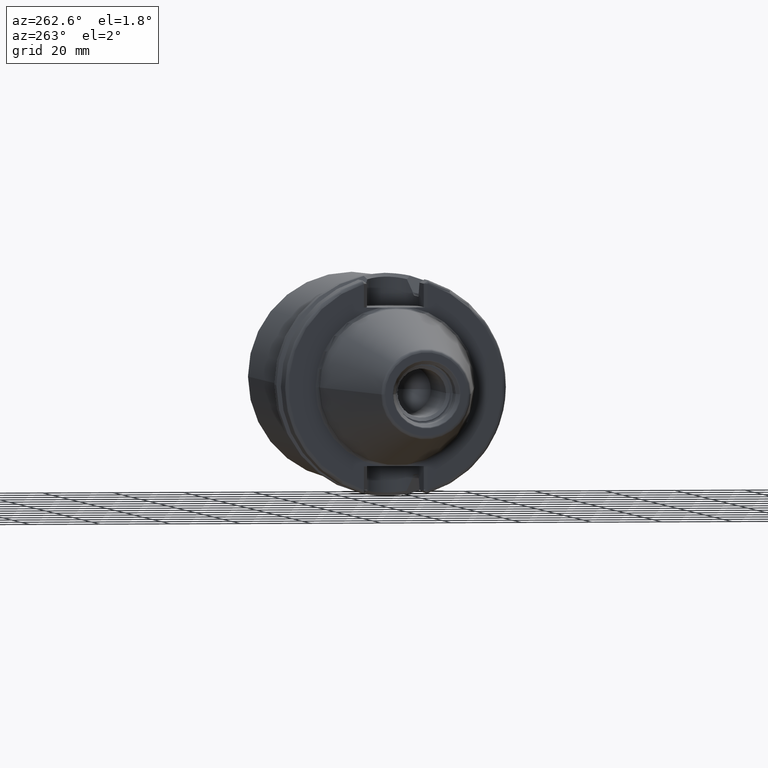
[diagram: clean part render]
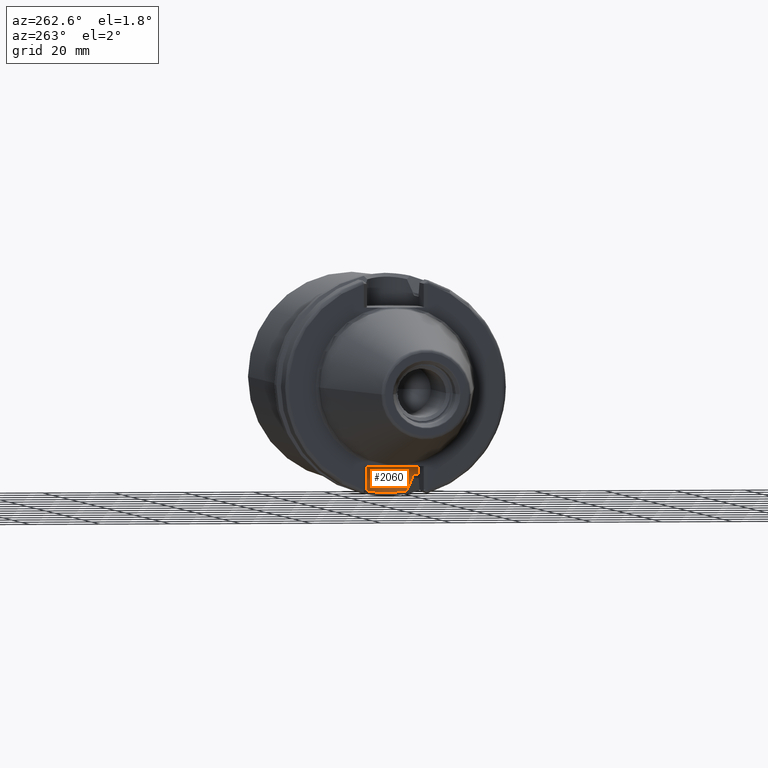
[diagram: same view with one face highlighted and labeled with its STEP entity id]
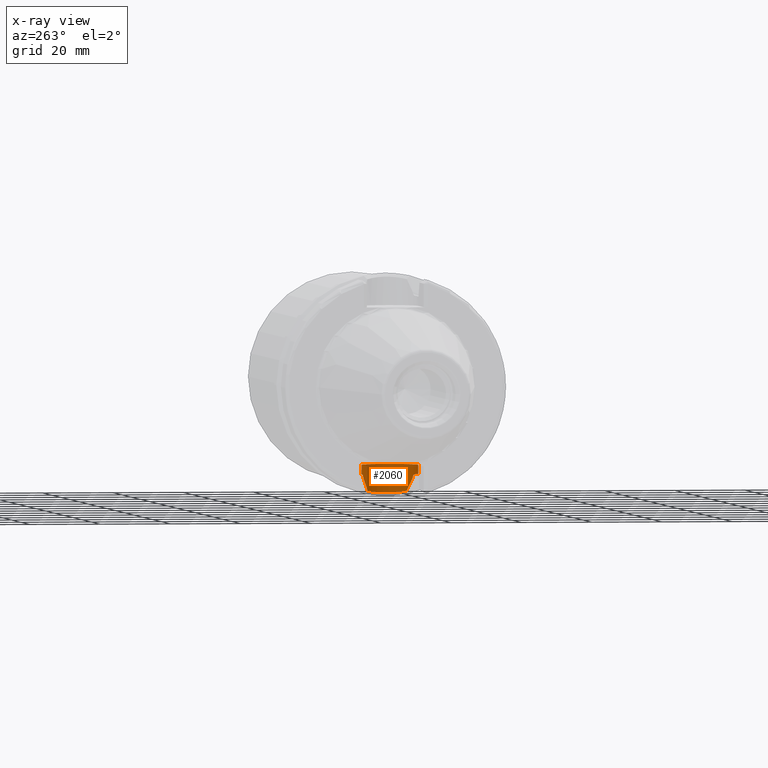
[diagram: x-ray of the same camera — body ghosted, the highlighted face saturated]
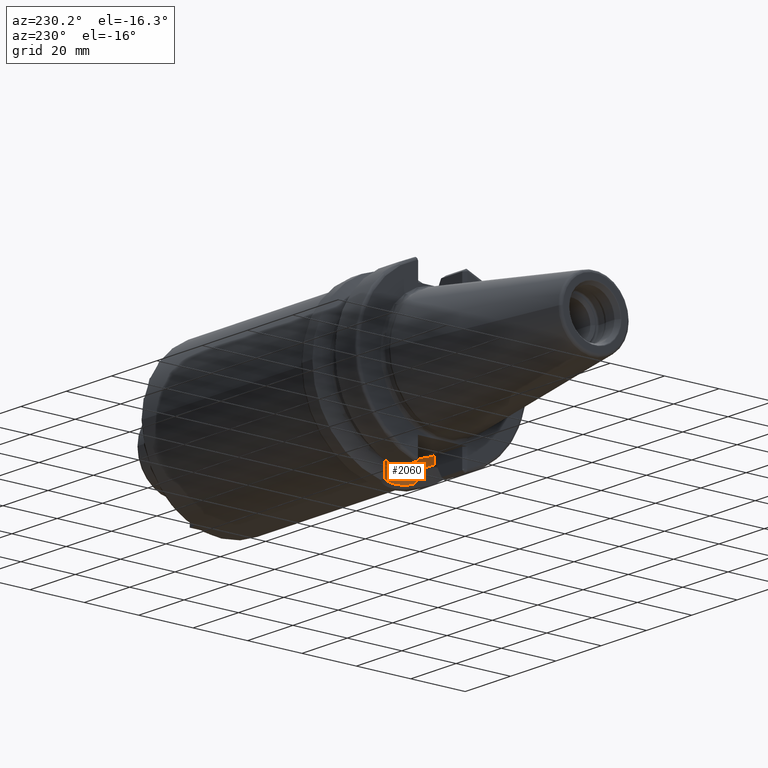
[diagram: same view with one face highlighted and labeled with its STEP entity id]
A machine part, auxiliary view. The second image highlights one B-rep face of the part: STEP entity #2060.
The next image is the same camera in x-ray: the body ghosted, the highlighted face saturated — about 1% of this face is hidden behind the body in this view.
A second angle (auxiliary view) of the same face is appended — the face is thin or edge-on in the first view.
In plain terms, the highlighted cylindrical surface (edge-blend (fillet) strip) has radius 8.095 mm, axis along (0, 0, 1).
Its self-contained STEP definition (entity closure, byte-faithful):
#181=DIRECTION('',(0.E0,0.E0,-1.E0));
#182=VECTOR('',#181,2.652023822792E0);
#183=CARTESIAN_POINT('',(1.5155E1,8.095E0,-2.245E1));
#184=LINE('',#183,#182);
#353=CARTESIAN_POINT('',(1.5155E1,8.095E0,-2.510202382279E1));
#354=CARTESIAN_POINT('',(1.552274115811E1,8.095E0,-2.510202382279E1));
#355=CARTESIAN_POINT('',(1.625266243215E1,8.045449937199E0,-2.511808739773E1));
#356=CARTESIAN_POINT('',(1.734035783533E1,7.820815510938E0,-2.518941465745E1));
#357=CARTESIAN_POINT('',(1.804170386658E1,7.572200800424E0,-2.526513476705E1));
#358=CARTESIAN_POINT('',(1.83875E1,7.421588020768E0,-2.530929979770E1));
#367=CARTESIAN_POINT('',(1.83875E1,-7.421588020768E0,-2.530929979770E1));
#368=CARTESIAN_POINT('',(1.804170386611E1,-7.572200800631E0,-2.526513476699E1));
#369=CARTESIAN_POINT('',(1.734035783411E1,-7.820815511030E0,-2.518941465742E1));
#370=CARTESIAN_POINT('',(1.625266243851E1,-8.045449936191E0,-2.511808739805E1));
#371=CARTESIAN_POINT('',(1.552274116086E1,-8.095E0,-2.510202382279E1));
#372=CARTESIAN_POINT('',(1.5155E1,-8.095E0,-2.510202382279E1));
#386=DIRECTION('',(0.E0,-5.138287856919E-14,1.E0));
#387=VECTOR('',#386,5.185648086088E-2);
#388=CARTESIAN_POINT('',(1.91375E1,-7.047603759435E0,-2.624530807186E1));
#389=LINE('',#388,#387);
#390=CARTESIAN_POINT('',(2.105861410330E1,-5.538624876202E0,-2.999548227013E1));
#391=CARTESIAN_POINT('',(2.093797596673E1,-5.667212931971E0,-2.975925502394E1));
#392=CARTESIAN_POINT('',(2.069265782077E1,-5.911926204526E0,-2.927912632192E1));
#393=CARTESIAN_POINT('',(2.031281915354E1,-6.245686951976E0,-2.853656269645E1));
#394=CARTESIAN_POINT('',(1.992518154069E1,-6.546159346979E0,-2.777970817700E1));
#395=CARTESIAN_POINT('',(1.953227047098E1,-6.814802578335E0,-2.701362543231E1));
#396=CARTESIAN_POINT('',(1.926930512179E1,-6.973122571862E0,-2.650168908776E1));
#397=CARTESIAN_POINT('',(1.91375E1,-7.047603759435E0,-2.624530807186E1));
#399=CARTESIAN_POINT('',(2.105861410330E1,-5.538624876202E0,-2.999548227013E1));
#400=CARTESIAN_POINT('',(2.118582632194E1,-5.403035030691E0,-3.001940255663E1));
#401=CARTESIAN_POINT('',(2.162492750073E1,-4.901348801114E0,-3.010480758191E1));
#402=CARTESIAN_POINT('',(2.226286577386E1,-3.959141053300E0,-3.024332364521E1));
#403=CARTESIAN_POINT('',(2.283624732779E1,-2.678045624697E0,-3.038109570299E1));
#404=CARTESIAN_POINT('',(2.317820212407E1,-1.337015438449E0,-3.046857541647E1));
#405=CARTESIAN_POINT('',(2.328849050350E1,3.161521998765E-2,-3.049763993087E1));
#406=CARTESIAN_POINT('',(2.316746512121E1,1.400327095984E0,-3.046576792407E1));
#407=CARTESIAN_POINT('',(2.281459155064E1,2.739516256176E0,-3.037568889831E1));
#408=CARTESIAN_POINT('',(2.223048246529E1,4.016867488334E0,-3.023587686159E1));
#409=CARTESIAN_POINT('',(2.159689403427E1,4.936294232451E0,-3.009909584392E1));
#410=CARTESIAN_POINT('',(2.117043535579E1,5.419444305002E0,-3.001651184455E1));
#411=CARTESIAN_POINT('',(2.105861623912E1,5.538622599637E0,-2.999548645237E1));
#413=CARTESIAN_POINT('',(1.91375E1,7.047603759435E0,-2.624530807186E1));
#414=CARTESIAN_POINT('',(1.926924659829E1,6.973155642658E0,-2.650157525064E1));
#415=CARTESIAN_POINT('',(1.953215093318E1,6.814880472402E0,-2.701339248784E1));
#416=CARTESIAN_POINT('',(1.992520758926E1,6.546145713789E0,-2.777975883833E1));
#417=CARTESIAN_POINT('',(2.031299763175E1,6.245544639533E0,-2.853691128968E1));
#418=CARTESIAN_POINT('',(2.069290284024E1,5.911695129812E0,-2.927960564408E1));
#419=CARTESIAN_POINT('',(2.093808029853E1,5.667101824111E0,-2.975945931955E1));
#420=CARTESIAN_POINT('',(2.105861623912E1,5.538622599637E0,-2.999548645237E1));
#422=DIRECTION('',(0.E0,2.055315142766E-13,1.E0));
#423=VECTOR('',#422,5.185648086092E-2);
#424=CARTESIAN_POINT('',(1.91375E1,7.047603759435E0,-2.624530807186E1));
#425=LINE('',#424,#423);
#426=CARTESIAN_POINT('',(1.83875E1,7.421588020768E0,-2.530929979770E1));
#427=CARTESIAN_POINT('',(1.845215642376E1,7.393426677236E0,-2.531755770651E1));
#428=CARTESIAN_POINT('',(1.857872916820E1,7.336410466726E0,-2.535018075128E1));
#429=CARTESIAN_POINT('',(1.877499389890E1,7.241428280265E0,-2.546209548146E1));
#430=CARTESIAN_POINT('',(1.893129669655E1,7.160762150281E0,-2.561408219456E1));
#431=CARTESIAN_POINT('',(1.905138585928E1,7.095863125167E0,-2.579909751285E1));
#432=CARTESIAN_POINT('',(1.912324356271E1,7.055692563985E0,-2.600243680224E1));
#433=CARTESIAN_POINT('',(1.91375E1,7.047603759435E0,-2.612998725804E1));
#434=CARTESIAN_POINT('',(1.91375E1,7.047603759435E0,-2.619345159100E1));
#436=DIRECTION('',(0.E0,0.E0,-1.E0));
#437=VECTOR('',#436,2.652023822792E0);
#438=CARTESIAN_POINT('',(1.5155E1,-8.095E0,-2.245E1));
#439=LINE('',#438,#437);
#440=CARTESIAN_POINT('',(1.91375E1,-7.047603759435E0,-2.619345159100E1));
#441=CARTESIAN_POINT('',(1.91375E1,-7.047603759435E0,-2.612998725804E1));
#442=CARTESIAN_POINT('',(1.912324356271E1,-7.055692563985E0,-2.600243680224E1));
#443=CARTESIAN_POINT('',(1.905138585928E1,-7.095863125167E0,-2.579909751285E1));
#444=CARTESIAN_POINT('',(1.893129669655E1,-7.160762150281E0,-2.561408219456E1));
#445=CARTESIAN_POINT('',(1.877499389890E1,-7.241428280265E0,-2.546209548146E1));
#446=CARTESIAN_POINT('',(1.857872916820E1,-7.336410466726E0,-2.535018075128E1));
#447=CARTESIAN_POINT('',(1.845215642376E1,-7.393426677236E0,-2.531755770651E1));
#448=CARTESIAN_POINT('',(1.83875E1,-7.421588020768E0,-2.530929979770E1));
#758=CARTESIAN_POINT('',(1.5155E1,0.E0,-2.245E1));
#759=DIRECTION('',(0.E0,0.E0,1.E0));
#760=DIRECTION('',(0.E0,-1.E0,0.E0));
#761=AXIS2_PLACEMENT_3D('',#758,#759,#760);
#1319=CARTESIAN_POINT('',(1.91375E1,-7.047603759435E0,-2.619345159100E1));
#1321=VERTEX_POINT('',#1319);
#1322=CARTESIAN_POINT('',(1.83875E1,-7.421588020768E0,-2.530929979770E1));
#1324=VERTEX_POINT('',#1322);
#1327=CARTESIAN_POINT('',(1.83875E1,7.421588020768E0,-2.530929979770E1));
#1329=VERTEX_POINT('',#1327);
#1330=CARTESIAN_POINT('',(1.91375E1,7.047603759435E0,-2.619345159100E1));
#1332=VERTEX_POINT('',#1330);
#1335=CARTESIAN_POINT('',(1.91375E1,7.047603759435E0,-2.624530807186E1));
#1337=VERTEX_POINT('',#1335);
#1338=CARTESIAN_POINT('',(1.91375E1,-7.047603759435E0,-2.624530807186E1));
#1340=VERTEX_POINT('',#1338);
#1436=CARTESIAN_POINT('',(1.5155E1,-8.095E0,-2.245E1));
#1437=CARTESIAN_POINT('',(1.5155E1,8.095E0,-2.245E1));
#1438=VERTEX_POINT('',#1436);
#1439=VERTEX_POINT('',#1437);
#1452=CARTESIAN_POINT('',(1.5155E1,8.095E0,-2.510202382279E1));
#1453=VERTEX_POINT('',#1452);
#1455=CARTESIAN_POINT('',(1.5155E1,-8.095E0,-2.510202382279E1));
#1456=VERTEX_POINT('',#1455);
#1458=VERTEX_POINT('',#390);
#1459=VERTEX_POINT('',#420);
#2033=CARTESIAN_POINT('',(1.5155E1,0.E0,-2.245E1));
#2034=DIRECTION('',(0.E0,0.E0,1.E0));
#2035=DIRECTION('',(1.E0,0.E0,0.E0));
#2036=AXIS2_PLACEMENT_3D('',#2033,#2034,#2035);
#2037=CYLINDRICAL_SURFACE('',#2036,8.095E0);
#2039=ORIENTED_EDGE('',*,*,#2038,.F.);
#2041=ORIENTED_EDGE('',*,*,#2040,.F.);
#2043=ORIENTED_EDGE('',*,*,#2042,.T.);
#2045=ORIENTED_EDGE('',*,*,#2044,.F.);
#2047=ORIENTED_EDGE('',*,*,#2046,.T.);
#2049=ORIENTED_EDGE('',*,*,#2048,.F.);
#2050=ORIENTED_EDGE('',*,*,#2004,.F.);
#2051=ORIENTED_EDGE('',*,*,#1805,.F.);
#2053=ORIENTED_EDGE('',*,*,#2052,.F.);
#2054=ORIENTED_EDGE('',*,*,#1956,.T.);
#2055=ORIENTED_EDGE('',*,*,#2020,.F.);
#2057=ORIENTED_EDGE('',*,*,#2056,.F.);
#2058=EDGE_LOOP('',(#2039,#2041,#2043,#2045,#2047,#2049,#2050,#2051,#2053,#2054,
#2055,#2057));
#2059=FACE_OUTER_BOUND('',#2058,.F.);
#2060=ADVANCED_FACE('',(#2059),#2037,.F.);
#359=B_SPLINE_CURVE_WITH_KNOTS('',3,(#353,#354,#355,#356,#357,#358),
.UNSPECIFIED.,.F.,.F.,(4,1,1,4),(0.E0,3.333333333333E-1,6.666666666667E-1,1.E0),
.UNSPECIFIED.);
#373=B_SPLINE_CURVE_WITH_KNOTS('',3,(#367,#368,#369,#370,#371,#372),
.UNSPECIFIED.,.F.,.F.,(4,1,1,4),(0.E0,3.333333333333E-1,6.666666666667E-1,1.E0),
.UNSPECIFIED.);
#398=B_SPLINE_CURVE_WITH_KNOTS('',3,(#390,#391,#392,#393,#394,#395,#396,#397),
.UNSPECIFIED.,.F.,.F.,(4,1,1,1,1,4),(0.E0,2.E-1,4.E-1,6.E-1,8.E-1,1.E0),
.UNSPECIFIED.);
#412=B_SPLINE_CURVE_WITH_KNOTS('',3,(#399,#400,#401,#402,#403,#404,#405,#406,
#407,#408,#409,#410,#411),.UNSPECIFIED.,.F.,.F.,(4,1,1,1,1,1,1,1,1,1,4),(0.E0,
4.417735347938E-2,1.588015462627E-1,2.734257390460E-1,3.880499318293E-1,
5.026741246127E-1,6.172983173960E-1,7.319225101793E-1,8.465467029626E-1,
9.611708957459E-1,1.E0),.UNSPECIFIED.);
#421=B_SPLINE_CURVE_WITH_KNOTS('',3,(#413,#414,#415,#416,#417,#418,#419,#420),
.UNSPECIFIED.,.F.,.F.,(4,1,1,1,1,4),(0.E0,2.E-1,4.E-1,6.E-1,8.E-1,1.E0),
.UNSPECIFIED.);
#435=B_SPLINE_CURVE_WITH_KNOTS('',3,(#426,#427,#428,#429,#430,#431,#432,#433,
#434),.UNSPECIFIED.,.F.,.F.,(4,1,1,1,1,1,4),(0.E0,1.666666666667E-1,
3.333333333333E-1,5.E-1,6.666666666667E-1,8.333333333333E-1,1.E0),
.UNSPECIFIED.);
#449=B_SPLINE_CURVE_WITH_KNOTS('',3,(#440,#441,#442,#443,#444,#445,#446,#447,
#448),.UNSPECIFIED.,.F.,.F.,(4,1,1,1,1,1,4),(0.E0,1.666666666667E-1,
3.333333333333E-1,5.E-1,6.666666666667E-1,8.333333333333E-1,1.E0),
.UNSPECIFIED.);
#762=CIRCLE('',#761,8.095E0);
#1805=EDGE_CURVE('',#1439,#1453,#184,.T.);
#1956=EDGE_CURVE('',#1438,#1456,#439,.T.);
#2004=EDGE_CURVE('',#1453,#1329,#359,.T.);
#2020=EDGE_CURVE('',#1324,#1456,#373,.T.);
#2038=EDGE_CURVE('',#1340,#1321,#389,.T.);
#2040=EDGE_CURVE('',#1458,#1340,#398,.T.);
#2042=EDGE_CURVE('',#1458,#1459,#412,.T.);
#2044=EDGE_CURVE('',#1337,#1459,#421,.T.);
#2046=EDGE_CURVE('',#1337,#1332,#425,.T.);
#2048=EDGE_CURVE('',#1329,#1332,#435,.T.);
#2052=EDGE_CURVE('',#1438,#1439,#762,.T.);
#2056=EDGE_CURVE('',#1321,#1324,#449,.T.);